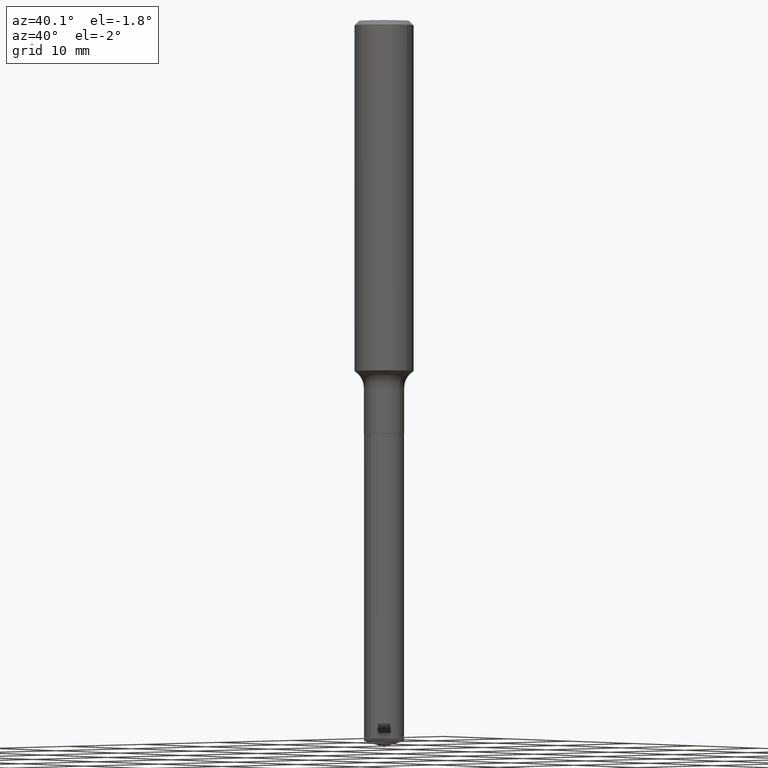
[diagram: clean part render]
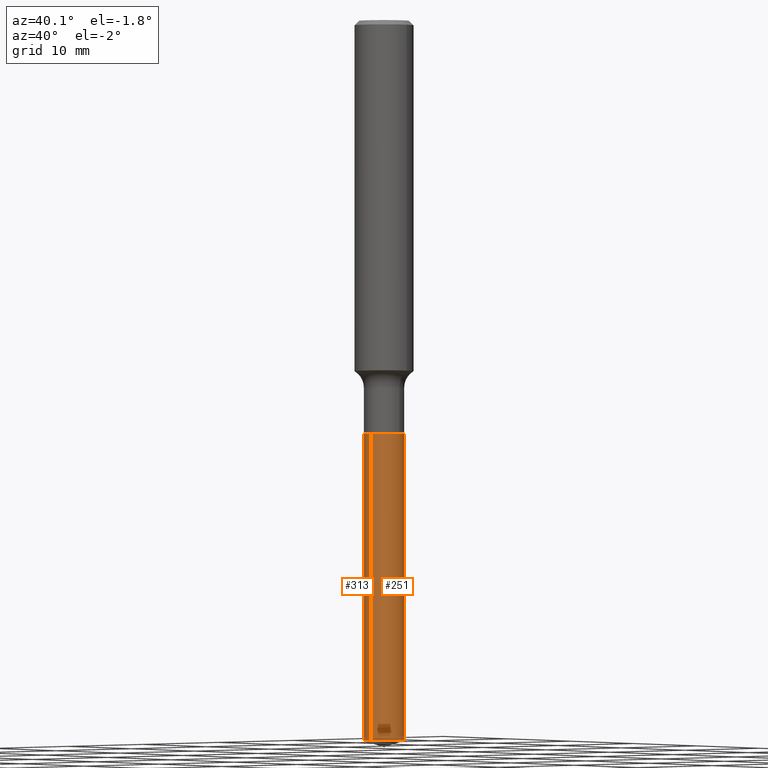
[diagram: same view with one multi-face feature highlighted, each face labeled with its STEP entity id]
A machine part, auxiliary view. The highlighted faces form ONE feature: a constant-radius fillet chain: 2 tangent blend faces with common blend radius 2.0498 mm. The faces share edges in the B-rep.
Their STEP definitions:
[1] entity #251 (Cylinder):
#14 = CARTESIAN_POINT ( 'NONE',  ( 4.053364546251863371E-29, -5.787130319132513889E-15, -1.657499999999999973 ) ) ;
#31 = DIRECTION ( 'NONE',  ( -6.982962677686266711E-15, -1.000000000000000000, 3.385189583227092077E-15 ) ) ;
#33 = CYLINDRICAL_SURFACE ( 'NONE', #201, 0.08069999999999999396 ) ;
#36 = EDGE_CURVE ( 'NONE', #405, #450, #229, .T. ) ;
#47 = VECTOR ( 'NONE', #270, 39.37007874015748143 ) ;
#64 = LINE ( 'NONE', #438, #439 ) ;
#69 = AXIS2_PLACEMENT_3D ( 'NONE', #132, #321, #469 ) ;
#89 = EDGE_CURVE ( 'NONE', #450, #266, #152, .T. ) ;
#93 = CARTESIAN_POINT ( 'NONE',  ( 5.734079877584715087E-16, 0.08069999999998991869, -2.887955387737466406 ) ) ;
#103 = ORIENTED_EDGE ( 'NONE', *, *, #391, .T. ) ;
#132 = CARTESIAN_POINT ( 'NONE',  ( 7.062404386367842478E-29, -1.008324295661499903E-14, -2.887955387737465962 ) ) ;
#135 = EDGE_CURVE ( 'NONE', #405, #235, #400, .T. ) ;
#149 = CARTESIAN_POINT ( 'NONE',  ( -5.635250880892411374E-16, -0.08070000000000578100, -1.657499999999999751 ) ) ;
#152 = CIRCLE ( 'NONE', #222, 0.08069999999999999396 ) ;
#181 = CARTESIAN_POINT ( 'NONE',  ( 5.734079877584715087E-16, 0.08069999999999420692, -1.657500000000000195 ) ) ;
#201 = AXIS2_PLACEMENT_3D ( 'NONE', #483, #376, #31 ) ;
#222 = AXIS2_PLACEMENT_3D ( 'NONE', #14, #433, #242 ) ;
#229 = LINE ( 'NONE', #378, #47 ) ;
#235 = VERTEX_POINT ( 'NONE', #93 ) ;
#242 = DIRECTION ( 'NONE',  ( -6.982962677686266711E-15, -1.000000000000000000, 3.385189583227092077E-15 ) ) ;
#251 = ADVANCED_FACE ( 'NONE', ( #260 ), #33, .T. ) ;
#260 = FACE_OUTER_BOUND ( 'NONE', #370, .T. ) ;
#266 = VERTEX_POINT ( 'NONE', #181 ) ;
#270 = DIRECTION ( 'NONE',  ( -2.445468458347713186E-29, 3.491481836966133799E-15, 1.000000000000000000 ) ) ;
#273 = ORIENTED_EDGE ( 'NONE', *, *, #89, .F. ) ;
#280 = ORIENTED_EDGE ( 'NONE', *, *, #36, .F. ) ;
#306 = CARTESIAN_POINT ( 'NONE',  ( -5.635250880892111607E-16, -0.08070000000001009699, -2.887955387737465074 ) ) ;
#321 = DIRECTION ( 'NONE',  ( -2.445468458347713186E-29, 3.491481836966133799E-15, 1.000000000000000000 ) ) ;
#336 = DIRECTION ( 'NONE',  ( -2.445468458347713186E-29, 3.491481836966133799E-15, 1.000000000000000000 ) ) ;
#370 = EDGE_LOOP ( 'NONE', ( #460, #103, #273, #280 ) ) ;
#376 = DIRECTION ( 'NONE',  ( -2.445468458347713186E-29, 3.491481836966133799E-15, 1.000000000000000000 ) ) ;
#378 = CARTESIAN_POINT ( 'NONE',  ( -5.635250880892411374E-16, -0.08070000000000578100, -1.657499999999999751 ) ) ;
#391 = EDGE_CURVE ( 'NONE', #235, #266, #64, .T. ) ;
#400 = CIRCLE ( 'NONE', #69, 0.08069999999999999396 ) ;
#405 = VERTEX_POINT ( 'NONE', #306 ) ;
#433 = DIRECTION ( 'NONE',  ( -2.445468458347713186E-29, 3.491481836966133799E-15, 1.000000000000000000 ) ) ;
#438 = CARTESIAN_POINT ( 'NONE',  ( 5.734079877584412362E-16, 0.08069999999999420692, -1.657500000000000195 ) ) ;
#439 = VECTOR ( 'NONE', #336, 39.37007874015748143 ) ;
#450 = VERTEX_POINT ( 'NONE', #149 ) ;
#460 = ORIENTED_EDGE ( 'NONE', *, *, #135, .T. ) ;
#469 = DIRECTION ( 'NONE',  ( -6.982962677686266711E-15, -1.000000000000000000, 6.770379166454184154E-15 ) ) ;
#483 = CARTESIAN_POINT ( 'NONE',  ( 4.053364546251863371E-29, -5.787130319132513889E-15, -1.657499999999999973 ) ) ;
[2] entity #313 (Cylinder):
#36 = EDGE_CURVE ( 'NONE', #405, #450, #229, .T. ) ;
#47 = VECTOR ( 'NONE', #270, 39.37007874015748143 ) ;
#54 = AXIS2_PLACEMENT_3D ( 'NONE', #484, #179, #369 ) ;
#64 = LINE ( 'NONE', #438, #439 ) ;
#83 = CIRCLE ( 'NONE', #308, 0.08069999999999999396 ) ;
#93 = CARTESIAN_POINT ( 'NONE',  ( 5.734079877584715087E-16, 0.08069999999998991869, -2.887955387737466406 ) ) ;
#105 = ORIENTED_EDGE ( 'NONE', *, *, #281, .T. ) ;
#138 = EDGE_LOOP ( 'NONE', ( #388, #105, #193, #453 ) ) ;
#149 = CARTESIAN_POINT ( 'NONE',  ( -5.635250880892411374E-16, -0.08070000000000578100, -1.657499999999999751 ) ) ;
#179 = DIRECTION ( 'NONE',  ( -2.445468458347713186E-29, 3.491481836966133799E-15, 1.000000000000000000 ) ) ;
#181 = CARTESIAN_POINT ( 'NONE',  ( 5.734079877584715087E-16, 0.08069999999999420692, -1.657500000000000195 ) ) ;
#193 = ORIENTED_EDGE ( 'NONE', *, *, #36, .T. ) ;
#229 = LINE ( 'NONE', #378, #47 ) ;
#235 = VERTEX_POINT ( 'NONE', #93 ) ;
#262 = DIRECTION ( 'NONE',  ( -2.445468458347713186E-29, 3.491481836966133799E-15, 1.000000000000000000 ) ) ;
#266 = VERTEX_POINT ( 'NONE', #181 ) ;
#270 = DIRECTION ( 'NONE',  ( -2.445468458347713186E-29, 3.491481836966133799E-15, 1.000000000000000000 ) ) ;
#271 = CIRCLE ( 'NONE', #287, 0.08069999999999999396 ) ;
#281 = EDGE_CURVE ( 'NONE', #235, #405, #271, .T. ) ;
#287 = AXIS2_PLACEMENT_3D ( 'NONE', #294, #262, #338 ) ;
#294 = CARTESIAN_POINT ( 'NONE',  ( 7.062404386367842478E-29, -1.008324295661499903E-14, -2.887955387737465962 ) ) ;
#299 = EDGE_CURVE ( 'NONE', #266, #450, #83, .T. ) ;
#306 = CARTESIAN_POINT ( 'NONE',  ( -5.635250880892111607E-16, -0.08070000000001009699, -2.887955387737465074 ) ) ;
#308 = AXIS2_PLACEMENT_3D ( 'NONE', #486, #487, #333 ) ;
#313 = ADVANCED_FACE ( 'NONE', ( #339 ), #402, .T. ) ;
#333 = DIRECTION ( 'NONE',  ( -6.982962677686266711E-15, -1.000000000000000000, 3.385189583227092077E-15 ) ) ;
#336 = DIRECTION ( 'NONE',  ( -2.445468458347713186E-29, 3.491481836966133799E-15, 1.000000000000000000 ) ) ;
#338 = DIRECTION ( 'NONE',  ( -6.982962677686266711E-15, -1.000000000000000000, 6.770379166454184154E-15 ) ) ;
#339 = FACE_OUTER_BOUND ( 'NONE', #138, .T. ) ;
#369 = DIRECTION ( 'NONE',  ( -6.982962677686266711E-15, -1.000000000000000000, 3.385189583227092077E-15 ) ) ;
#378 = CARTESIAN_POINT ( 'NONE',  ( -5.635250880892411374E-16, -0.08070000000000578100, -1.657499999999999751 ) ) ;
#388 = ORIENTED_EDGE ( 'NONE', *, *, #391, .F. ) ;
#391 = EDGE_CURVE ( 'NONE', #235, #266, #64, .T. ) ;
#402 = CYLINDRICAL_SURFACE ( 'NONE', #54, 0.08069999999999999396 ) ;
#405 = VERTEX_POINT ( 'NONE', #306 ) ;
#438 = CARTESIAN_POINT ( 'NONE',  ( 5.734079877584412362E-16, 0.08069999999999420692, -1.657500000000000195 ) ) ;
#439 = VECTOR ( 'NONE', #336, 39.37007874015748143 ) ;
#450 = VERTEX_POINT ( 'NONE', #149 ) ;
#453 = ORIENTED_EDGE ( 'NONE', *, *, #299, .F. ) ;
#484 = CARTESIAN_POINT ( 'NONE',  ( 4.053364546251863371E-29, -5.787130319132513889E-15, -1.657499999999999973 ) ) ;
#486 = CARTESIAN_POINT ( 'NONE',  ( 4.053364546251863371E-29, -5.787130319132513889E-15, -1.657499999999999973 ) ) ;
#487 = DIRECTION ( 'NONE',  ( -2.445468458347713186E-29, 3.491481836966133799E-15, 1.000000000000000000 ) ) ;